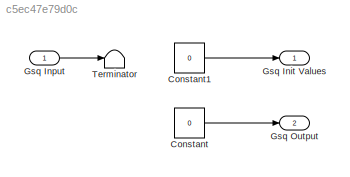
MODEL slx_c5ec47e79d0c
KIND model
BLOCK [Constant] Constant
  OutDataTypeStr = Bus: GSQ_OUTPUT_BUS
  SampleTime = 0
  Value = 0
BLOCK [Constant] Constant1
  OutDataTypeStr = Bus: GSQ_INPUT_BUS
  SampleTime = 0
  Value = 0
BLOCK [Outport] Gsq Init Values
  BusOutputAsStruct = on
  IconDisplay = Port number
  OutDataTypeStr = Bus: GSQ_INPUT_BUS
BLOCK [Inport] Gsq Input
  BusOutputAsStruct = on
  IconDisplay = Port number
  OutDataTypeStr = Bus: GSQ_INPUT_BUS
BLOCK [Outport] Gsq Output
  BusOutputAsStruct = on
  IconDisplay = Port number
  OutDataTypeStr = Bus: GSQ_OUTPUT_BUS
  Port = 2
BLOCK [Terminator] Terminator
LINE Constant1:1 -> Gsq Init Values:1
LINE Constant:1 -> Gsq Output:1
LINE Gsq Input:1 -> Terminator:1
